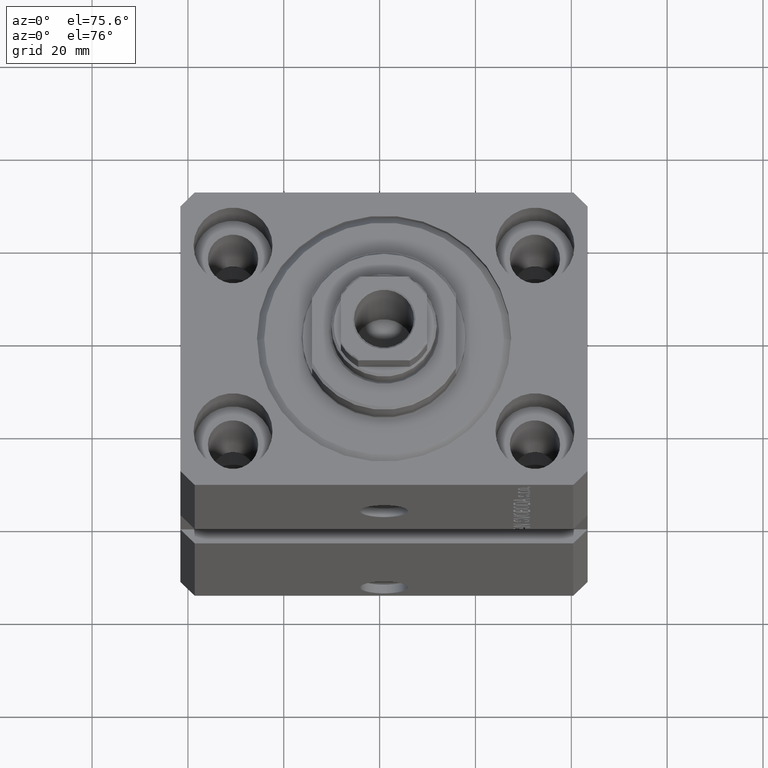
[diagram: clean part render]
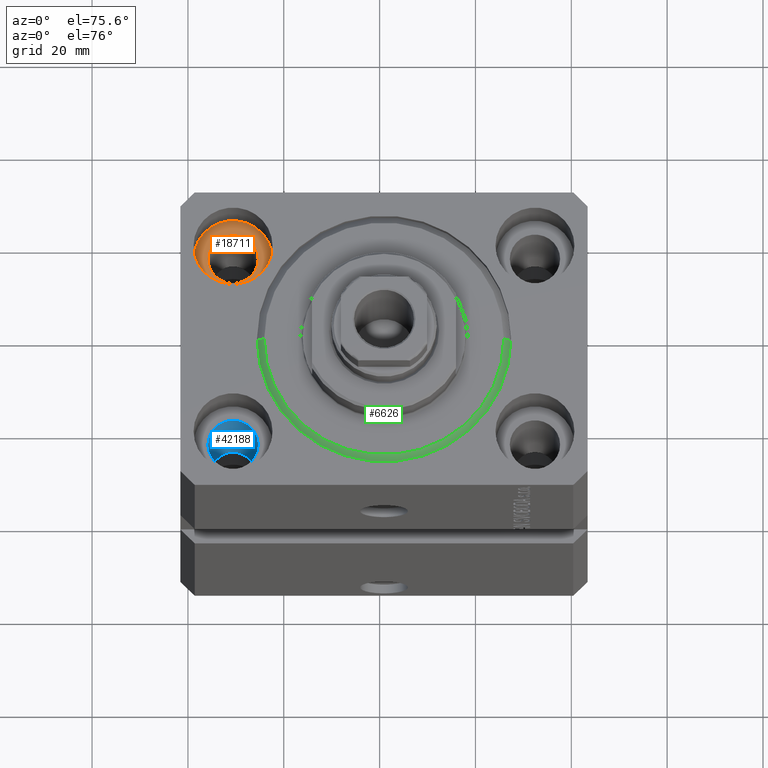
[diagram: same view with three faces highlighted in distinct colors, each labeled with its STEP entity id]
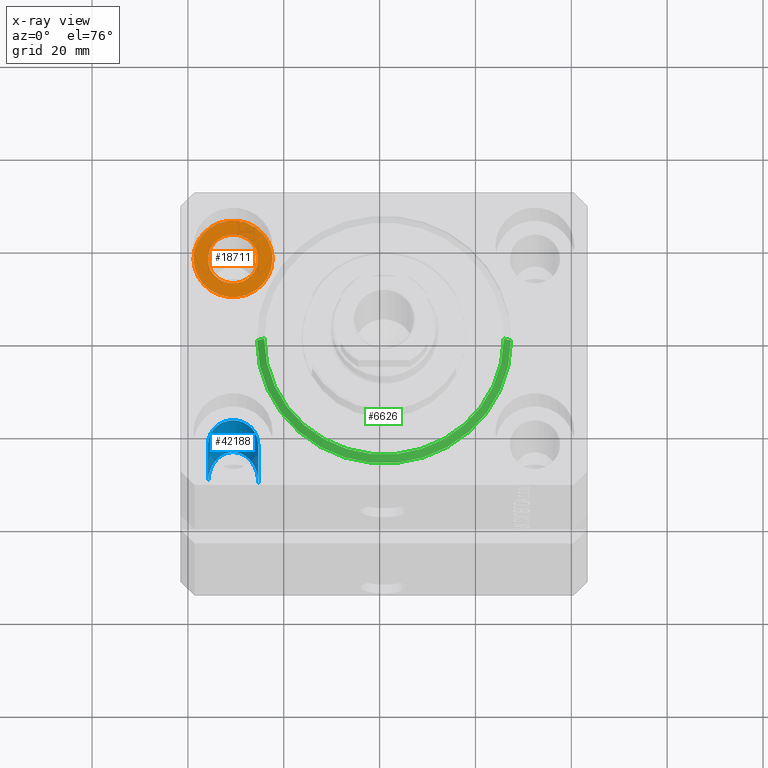
[diagram: x-ray of the same camera — body ghosted, the three highlighted faces saturated]
A machine part, auxiliary view with three faces highlighted in distinct colors.
The next image is the same camera in x-ray (body ghosted, the three faces saturated) — at least one of them is partly hidden behind the body in this view.
Their STEP definitions:

[orange] entity #18711 — the highlighted planar face has unit normal (0, 0, 1).
#98 = CARTESIAN_POINT ( 'NONE',  ( -23.25000000000000000, 20.00000000000000000, -11.00000000000000000 ) ) ;
#444 = DIRECTION ( 'NONE',  ( 0.000000000000000000, 0.000000000000000000, 1.000000000000000000 ) ) ;
#902 = DIRECTION ( 'NONE',  ( 0.000000000000000000, 0.000000000000000000, 1.000000000000000000 ) ) ;
#2151 = VERTEX_POINT ( 'NONE', #39245 ) ;
#2319 = FACE_OUTER_BOUND ( 'NONE', #31363, .T. ) ;
#2564 = CIRCLE ( 'NONE', #24268, 8.250000000000000000 ) ;
#4085 = ORIENTED_EDGE ( 'NONE', *, *, #29997, .F. ) ;
#4314 = CARTESIAN_POINT ( 'NONE',  ( -36.75000000000000000, 20.00000000000000000, -11.00000000000000000 ) ) ;
#5506 = PLANE ( 'NONE',  #25512 ) ;
#9785 = CIRCLE ( 'NONE', #35121, 5.250000000000000888 ) ;
#10220 = DIRECTION ( 'NONE',  ( 1.000000000000000000, 0.000000000000000000, 0.000000000000000000 ) ) ;
#12416 = CIRCLE ( 'NONE', #29069, 8.250000000000000000 ) ;
#14733 = CARTESIAN_POINT ( 'NONE',  ( -31.50000000000000000, 20.00000000000000000, -11.00000000000000000 ) ) ;
#15526 = VERTEX_POINT ( 'NONE', #98 ) ;
#15723 = FACE_BOUND ( 'NONE', #44726, .T. ) ;
#15935 = DIRECTION ( 'NONE',  ( 0.000000000000000000, 0.000000000000000000, 1.000000000000000000 ) ) ;
#16733 = ORIENTED_EDGE ( 'NONE', *, *, #31061, .T. ) ;
#16846 = EDGE_CURVE ( 'NONE', #15526, #25432, #12416, .T. ) ;
#18711 = ADVANCED_FACE ( 'NONE', ( #15723, #2319 ), #5506, .T. ) ;
#21053 = DIRECTION ( 'NONE',  ( 1.000000000000000000, 0.000000000000000000, 0.000000000000000000 ) ) ;
#22494 = DIRECTION ( 'NONE',  ( 1.000000000000000000, 0.000000000000000000, -0.000000000000000000 ) ) ;
#24029 = DIRECTION ( 'NONE',  ( 0.000000000000000000, 0.000000000000000000, 1.000000000000000000 ) ) ;
#24268 = AXIS2_PLACEMENT_3D ( 'NONE', #27433, #24029, #10220 ) ;
#24481 = CARTESIAN_POINT ( 'NONE',  ( -31.50000000000000000, 20.00000000000000000, -11.00000000000000000 ) ) ;
#24596 = ORIENTED_EDGE ( 'NONE', *, *, #16846, .T. ) ;
#24698 = DIRECTION ( 'NONE',  ( 0.000000000000000000, 0.000000000000000000, 1.000000000000000000 ) ) ;
#24923 = DIRECTION ( 'NONE',  ( 1.000000000000000000, 0.000000000000000000, 0.000000000000000000 ) ) ;
#25432 = VERTEX_POINT ( 'NONE', #37086 ) ;
#25512 = AXIS2_PLACEMENT_3D ( 'NONE', #25902, #15935, #22494 ) ;
#25902 = CARTESIAN_POINT ( 'NONE',  ( -31.50000000000000000, 20.00000000000000000, -11.00000000000000000 ) ) ;
#27433 = CARTESIAN_POINT ( 'NONE',  ( -31.50000000000000000, 20.00000000000000000, -11.00000000000000000 ) ) ;
#29069 = AXIS2_PLACEMENT_3D ( 'NONE', #14733, #444, #21053 ) ;
#29997 = EDGE_CURVE ( 'NONE', #2151, #31186, #9785, .T. ) ;
#31061 = EDGE_CURVE ( 'NONE', #25432, #15526, #2564, .T. ) ;
#31186 = VERTEX_POINT ( 'NONE', #4314 ) ;
#31363 = EDGE_LOOP ( 'NONE', ( #24596, #16733 ) ) ;
#31509 = CARTESIAN_POINT ( 'NONE',  ( -31.50000000000000000, 20.00000000000000000, -11.00000000000000000 ) ) ;
#35121 = AXIS2_PLACEMENT_3D ( 'NONE', #24481, #24698, #38765 ) ;
#36026 = CIRCLE ( 'NONE', #41818, 5.250000000000000888 ) ;
#37086 = CARTESIAN_POINT ( 'NONE',  ( -39.75000000000000000, 20.00000000000000000, -11.00000000000000000 ) ) ;
#38765 = DIRECTION ( 'NONE',  ( 1.000000000000000000, 0.000000000000000000, 0.000000000000000000 ) ) ;
#39245 = CARTESIAN_POINT ( 'NONE',  ( -26.25000000000000000, 20.00000000000000000, -11.00000000000000000 ) ) ;
#40571 = EDGE_CURVE ( 'NONE', #31186, #2151, #36026, .T. ) ;
#41818 = AXIS2_PLACEMENT_3D ( 'NONE', #31509, #902, #24923 ) ;
#43701 = ORIENTED_EDGE ( 'NONE', *, *, #40571, .F. ) ;
#44726 = EDGE_LOOP ( 'NONE', ( #4085, #43701 ) ) ;

[blue] entity #42188 — the highlighted cylindrical surface (edge-blend (fillet) strip) has radius 5.25 mm, axis along (0, 0, 1).
#35 = CARTESIAN_POINT ( 'NONE',  ( -26.25000000000000000, -20.00000000000000000, -93.00000000000000000 ) ) ;
#65 = EDGE_LOOP ( 'NONE', ( #5313, #37707, #12510, #10904 ) ) ;
#483 = CARTESIAN_POINT ( 'NONE',  ( -31.50000000000000000, -20.00000000000000000, -11.00000000000000000 ) ) ;
#1797 = DIRECTION ( 'NONE',  ( -0.000000000000000000, -0.000000000000000000, 1.000000000000000000 ) ) ;
#2639 = AXIS2_PLACEMENT_3D ( 'NONE', #483, #17042, #21089 ) ;
#3674 = EDGE_CURVE ( 'NONE', #21872, #13418, #31002, .T. ) ;
#5313 = ORIENTED_EDGE ( 'NONE', *, *, #3674, .F. ) ;
#7535 = EDGE_CURVE ( 'NONE', #21872, #38928, #9108, .T. ) ;
#9108 =( BOUNDED_CURVE ( )  B_SPLINE_CURVE ( 3, ( #26508, #40344, #44411, #16320 ),
 .UNSPECIFIED., .F., .F. ) 
 B_SPLINE_CURVE_WITH_KNOTS ( ( 4, 4 ),
 ( 4.712388980384689674, 7.853981633974482790 ),
 .UNSPECIFIED. ) 
 CURVE ( )  GEOMETRIC_REPRESENTATION_ITEM ( )  RATIONAL_B_SPLINE_CURVE ( ( 1.000000000000000000, 0.3333333333333333703, 0.3333333333333333703, 1.000000000000000000 ) ) 
 REPRESENTATION_ITEM ( '' )  );
#9292 = EDGE_CURVE ( 'NONE', #38928, #35799, #21093, .T. ) ;
#10904 = ORIENTED_EDGE ( 'NONE', *, *, #44709, .T. ) ;
#12231 = FACE_OUTER_BOUND ( 'NONE', #65, .T. ) ;
#12510 = ORIENTED_EDGE ( 'NONE', *, *, #9292, .T. ) ;
#13418 = VERTEX_POINT ( 'NONE', #32429 ) ;
#14452 = CARTESIAN_POINT ( 'NONE',  ( -36.74999999999999289, -20.00000000000000355, -43.00000000000000000 ) ) ;
#16320 = CARTESIAN_POINT ( 'NONE',  ( -26.24999999999999645, -20.00000000000000355, -43.00000000000000000 ) ) ;
#17042 = DIRECTION ( 'NONE',  ( 0.000000000000000000, 0.000000000000000000, 1.000000000000000000 ) ) ;
#17837 = DIRECTION ( 'NONE',  ( -0.000000000000000000, -0.000000000000000000, 1.000000000000000000 ) ) ;
#19014 = CYLINDRICAL_SURFACE ( 'NONE', #27399, 5.250000000000000888 ) ;
#21089 = DIRECTION ( 'NONE',  ( 1.000000000000000000, 0.000000000000000000, 0.000000000000000000 ) ) ;
#21093 = LINE ( 'NONE', #35, #28692 ) ;
#21872 = VERTEX_POINT ( 'NONE', #14452 ) ;
#24175 = CARTESIAN_POINT ( 'NONE',  ( -36.75000000000000000, -20.00000000000000000, -93.00000000000000000 ) ) ;
#25563 = CARTESIAN_POINT ( 'NONE',  ( -26.24999999999999645, -20.00000000000000355, -43.00000000000000000 ) ) ;
#26508 = CARTESIAN_POINT ( 'NONE',  ( -36.74999999999999289, -20.00000000000000355, -43.00000000000000000 ) ) ;
#27399 = AXIS2_PLACEMENT_3D ( 'NONE', #32857, #1797, #43716 ) ;
#27812 = VECTOR ( 'NONE', #17837, 1000.000000000000000 ) ;
#28692 = VECTOR ( 'NONE', #34930, 1000.000000000000000 ) ;
#31002 = LINE ( 'NONE', #24175, #27812 ) ;
#32429 = CARTESIAN_POINT ( 'NONE',  ( -36.75000000000000000, -20.00000000000000000, -11.00000000000000000 ) ) ;
#32857 = CARTESIAN_POINT ( 'NONE',  ( -31.50000000000000000, -20.00000000000000000, -93.00000000000000000 ) ) ;
#34930 = DIRECTION ( 'NONE',  ( -0.000000000000000000, -0.000000000000000000, 1.000000000000000000 ) ) ;
#35799 = VERTEX_POINT ( 'NONE', #40583 ) ;
#37707 = ORIENTED_EDGE ( 'NONE', *, *, #7535, .T. ) ;
#38928 = VERTEX_POINT ( 'NONE', #25563 ) ;
#39557 = CIRCLE ( 'NONE', #2639, 5.250000000000000888 ) ;
#40344 = CARTESIAN_POINT ( 'NONE',  ( -36.74999999999999289, -9.500000000000012434, -32.50000000000001421 ) ) ;
#40583 = CARTESIAN_POINT ( 'NONE',  ( -26.25000000000000000, -20.00000000000000000, -11.00000000000000000 ) ) ;
#42188 = ADVANCED_FACE ( 'NONE', ( #12231 ), #19014, .F. ) ;
#43716 = DIRECTION ( 'NONE',  ( 1.000000000000000000, 0.000000000000000000, 0.000000000000000000 ) ) ;
#44411 = CARTESIAN_POINT ( 'NONE',  ( -26.25000000000000355, -9.500000000000012434, -32.50000000000001421 ) ) ;
#44709 = EDGE_CURVE ( 'NONE', #35799, #13418, #39557, .T. ) ;

[green] entity #6626 — the highlighted conical surface has half-angle 45 deg.
#6147 = CARTESIAN_POINT ( 'NONE',  ( 26.50000000000000355, 0.000000000000000000, 1.500000000000018652 ) ) ;
#6626 = ADVANCED_FACE ( 'NONE', ( #36657 ), #35838, .T. ) ;
#8402 = AXIS2_PLACEMENT_3D ( 'NONE', #36263, #25838, #11353 ) ;
#9436 = DIRECTION ( 'NONE',  ( 1.000000000000000000, 0.000000000000000000, 0.000000000000000000 ) ) ;
#10867 = CARTESIAN_POINT ( 'NONE',  ( 24.99999999999998224, 0.000000000000000000, 0.000000000000000000 ) ) ;
#11120 = CARTESIAN_POINT ( 'NONE',  ( -24.99999999999998224, 3.153465507804433615E-15, 0.000000000000000000 ) ) ;
#11353 = DIRECTION ( 'NONE',  ( 1.000000000000000000, 0.000000000000000000, 0.000000000000000000 ) ) ;
#13284 = ORIENTED_EDGE ( 'NONE', *, *, #43655, .F. ) ;
#13396 = VERTEX_POINT ( 'NONE', #11120 ) ;
#13399 = ORIENTED_EDGE ( 'NONE', *, *, #30722, .F. ) ;
#17084 = EDGE_CURVE ( 'NONE', #28066, #35427, #19964, .T. ) ;
#19964 = LINE ( 'NONE', #6147, #41363 ) ;
#20128 = VECTOR ( 'NONE', #20346, 1000.000000000000000 ) ;
#20346 = DIRECTION ( 'NONE',  ( -0.7071067811865483499, 8.659560562354942719E-17, 0.7071067811865466846 ) ) ;
#21073 = CARTESIAN_POINT ( 'NONE',  ( -26.50000000000000355, 0.000000000000000000, 1.500000000000018652 ) ) ;
#21463 = EDGE_LOOP ( 'NONE', ( #44657, #13399, #24198, #13284 ) ) ;
#22157 = CARTESIAN_POINT ( 'NONE',  ( 0.000000000000000000, 0.000000000000000000, 1.500000000000018652 ) ) ;
#24192 = LINE ( 'NONE', #37590, #20128 ) ;
#24198 = ORIENTED_EDGE ( 'NONE', *, *, #17084, .T. ) ;
#25838 = DIRECTION ( 'NONE',  ( -0.000000000000000000, -0.000000000000000000, 1.000000000000000000 ) ) ;
#26651 = DIRECTION ( 'NONE',  ( -0.000000000000000000, -0.000000000000000000, -1.000000000000000000 ) ) ;
#28066 = VERTEX_POINT ( 'NONE', #10867 ) ;
#29624 = CARTESIAN_POINT ( 'NONE',  ( 0.000000000000000000, 0.000000000000000000, 0.000000000000000000 ) ) ;
#30722 = EDGE_CURVE ( 'NONE', #28066, #13396, #44572, .T. ) ;
#31076 = VERTEX_POINT ( 'NONE', #21073 ) ;
#32388 = CIRCLE ( 'NONE', #8402, 26.50000000000000355 ) ;
#33668 = AXIS2_PLACEMENT_3D ( 'NONE', #22157, #39386, #40055 ) ;
#33802 = DIRECTION ( 'NONE',  ( 0.7071067811865483499, 0.000000000000000000, 0.7071067811865466846 ) ) ;
#35427 = VERTEX_POINT ( 'NONE', #43385 ) ;
#35838 = CONICAL_SURFACE ( 'NONE', #33668, 26.50000000000000355, 0.7853981633974495002 ) ;
#36263 = CARTESIAN_POINT ( 'NONE',  ( 0.000000000000000000, 0.000000000000000000, 1.500000000000018652 ) ) ;
#36657 = FACE_OUTER_BOUND ( 'NONE', #21463, .T. ) ;
#37590 = CARTESIAN_POINT ( 'NONE',  ( -26.50000000000000355, 3.245314017740486554E-15, 1.500000000000018652 ) ) ;
#38023 = AXIS2_PLACEMENT_3D ( 'NONE', #29624, #26651, #9436 ) ;
#39386 = DIRECTION ( 'NONE',  ( -0.000000000000000000, -0.000000000000000000, 1.000000000000000000 ) ) ;
#40055 = DIRECTION ( 'NONE',  ( 1.000000000000000000, 0.000000000000000000, 0.000000000000000000 ) ) ;
#40857 = EDGE_CURVE ( 'NONE', #13396, #31076, #24192, .T. ) ;
#41363 = VECTOR ( 'NONE', #33802, 1000.000000000000000 ) ;
#43385 = CARTESIAN_POINT ( 'NONE',  ( 26.50000000000000355, 3.245314017740486554E-15, 1.500000000000018652 ) ) ;
#43655 = EDGE_CURVE ( 'NONE', #31076, #35427, #32388, .T. ) ;
#44572 = CIRCLE ( 'NONE', #38023, 24.99999999999998224 ) ;
#44657 = ORIENTED_EDGE ( 'NONE', *, *, #40857, .F. ) ;